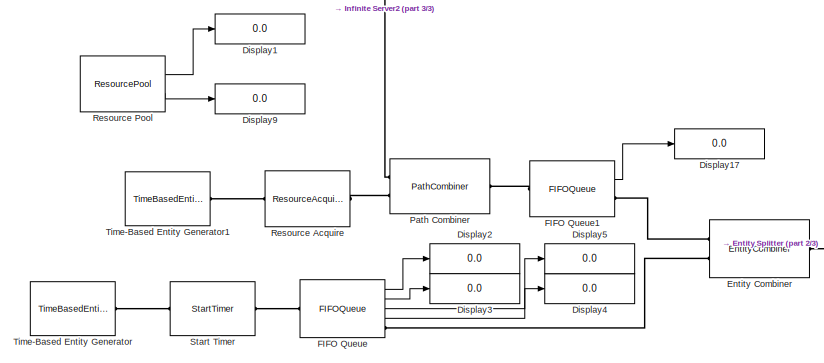
[diagram: root canvas - part 1/3, middle left region]
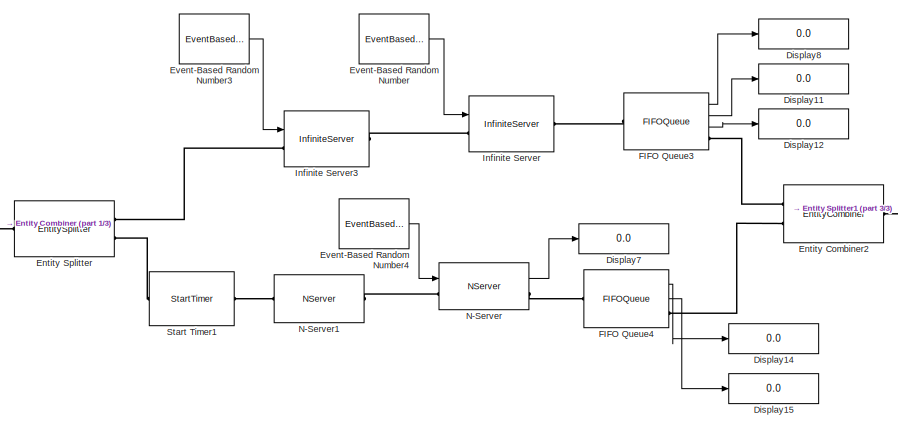
[diagram: root canvas - part 2/3, center side, full height]
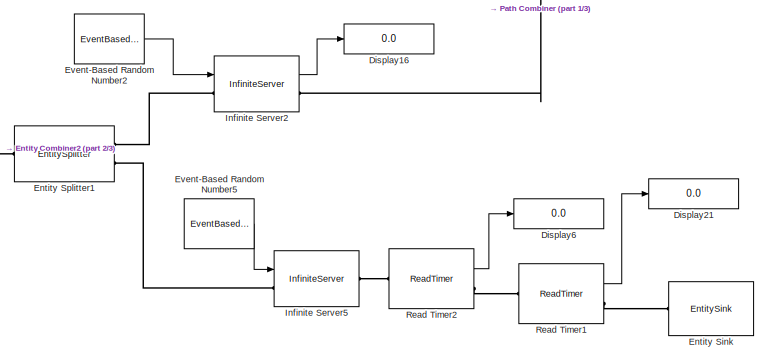
[diagram: root canvas - part 3/3, middle right region]
MODEL slx_b2f74bf23abc
KIND model
CONFIG AbsTol = auto
CONFIG EnableMultiTasking = off
CONFIG FixedStep = auto
CONFIG MaxStep = auto
CONFIG MinStep = auto
CONFIG RelTol = 1e-3
CONFIG SampleTimeConstraint = Unconstrained
CONFIG Solver = VariableStepAuto
CONFIG SolverName = VariableStepAuto
CONFIG StartTime = 0.0
CONFIG StopTime = 720000
BLOCK [Display] Display1
  Decimation = 1
  Ports = [1]
BLOCK [Display] Display11
  Decimation = 1
  Ports = [1]
BLOCK [Display] Display12
  Decimation = 1
  Ports = [1]
BLOCK [Display] Display14
  Decimation = 1
  Ports = [1]
BLOCK [Display] Display15
  Decimation = 1
  Ports = [1]
BLOCK [Display] Display16
  Decimation = 1
  Ports = [1]
BLOCK [Display] Display17
  Decimation = 1
  Ports = [1]
BLOCK [Display] Display2
  Decimation = 1
  Ports = [1]
BLOCK [Display] Display21
  Decimation = 1
  Format = long
  Ports = [1]
BLOCK [Display] Display3
  Decimation = 1
  Ports = [1]
BLOCK [Display] Display4
  Decimation = 1
  Ports = [1]
BLOCK [Display] Display5
  Decimation = 1
  Ports = [1]
BLOCK [Display] Display6
  Decimation = 1
  Ports = [1]
BLOCK [Display] Display7
  Decimation = 1
  Ports = [1]
BLOCK [Display] Display8
  Decimation = 1
  Ports = [1]
BLOCK [Display] Display9
  Decimation = 1
  Ports = [1]
BLOCK [EntityCombiner] Entity Combiner
  NumberInputPorts = 2
  Ports = [0, 0, 0, 0, 0, 2, 1]
BLOCK [EntityCombiner] Entity Combiner2
  NumberInputPorts = 2
  Ports = [0, 0, 0, 0, 0, 2, 1]
BLOCK [EntitySink] Entity Sink
  Ports = [0, 0, 0, 0, 0, 1]
BLOCK [EntitySplitter] Entity Splitter
  NumberOutputPorts = 2
  Ports = [0, 0, 0, 0, 0, 1, 2]
BLOCK [EntitySplitter] Entity Splitter1
  NumberOutputPorts = 2
  Ports = [0, 0, 0, 0, 0, 1, 2]
BLOCK [EventBasedRandomNumber] Event-Based Random Number
  OutputPortMap = o0
  Ports = [0, 1]
  Seed = 34425
  meanExp = 387
  meanNorm = 315
  stdNorm = 5
BLOCK [EventBasedRandomNumber] Event-Based Random Number2
  OutputPortMap = o0
  Ports = [0, 1]
  Seed = 58140
  meanExp = 10
BLOCK [EventBasedRandomNumber] Event-Based Random Number3
  OutputPortMap = o0
  Ports = [0, 1]
  Seed = 11223
  meanExp = 10
  meanNorm = 12
  stdNorm = 3
BLOCK [EventBasedRandomNumber] Event-Based Random Number4
  OutputPortMap = o0
  Ports = [0, 1]
  Seed = 343
  meanExp = 986
  meanNorm = 7
  stdNorm = 38
BLOCK [EventBasedRandomNumber] Event-Based Random Number5
  OutputPortMap = o0
  Ports = [0, 1]
  Seed = 61357
  meanExp = 10
BLOCK [FIFOQueue] FIFO Queue
  Capacity = 10000
  OutputPortMap = o0,o1,o2,o3
  Ports = [0, 4, 0, 0, 0, 1, 1]
  StatAverageQueueLength = on
  StatAverageWait = on
  StatNumberDeparted = on
  StatNumberInBlock = on
BLOCK [FIFOQueue] FIFO Queue1
  OutputPortMap = o3
  Ports = [0, 1, 0, 0, 0, 1, 1]
  StatAverageQueueLength = on
BLOCK [FIFOQueue] FIFO Queue3
  OutputPortMap = o0,o2,o3
  Ports = [0, 3, 0, 0, 0, 1, 1]
  StatAverageQueueLength = on
  StatAverageWait = on
  StatNumberDeparted = on
BLOCK [FIFOQueue] FIFO Queue4
  Capacity = 1
  OutputPortMap = o2,o3
  Ports = [0, 2, 0, 0, 0, 1, 1]
  StatAverageQueueLength = on
  StatAverageWait = on
BLOCK [InfiniteServer] Infinite Server
  InputPortMap = u0
  Ports = [1, 0, 0, 0, 0, 1, 1]
  ServiceTimeFrom = Signal port t
BLOCK [InfiniteServer] Infinite Server2
  InputPortMap = u0
  OutputPortMap = o0
  Ports = [1, 1, 0, 0, 0, 1, 1]
  ServiceTimeFrom = Signal port t
  StatNumberDeparted = on
BLOCK [InfiniteServer] Infinite Server3
  InputPortMap = u0
  Ports = [1, 0, 0, 0, 0, 1, 1]
  ServiceTimeFrom = Signal port t
BLOCK [InfiniteServer] Infinite Server5
  InputPortMap = u0
  Ports = [1, 0, 0, 0, 0, 1, 1]
  ServiceTimeFrom = Signal port t
BLOCK [NServer] N-Server
  InputPortMap = u0
  NumberOfServers = 48
  OutputPortMap = o5
  Ports = [1, 1, 0, 0, 0, 1, 1]
  ServiceTimeFrom = Signal port t
  StatUtilization = on
BLOCK [NServer] N-Server1
  NumberOfServers = 20
  Ports = [0, 0, 0, 0, 0, 1, 1]
  ServiceTime = 0
BLOCK [PathCombiner] Path Combiner
  NumberInputPorts = 2
  Ports = [0, 0, 0, 0, 0, 2, 1]
BLOCK [ReadTimer] Read Timer1
  OutputPortMap = o3
  Ports = [0, 1, 0, 0, 0, 1, 1]
  StatAverageTimeElapsed = on
  TimerTag = T2
BLOCK [ReadTimer] Read Timer2
  OutputPortMap = o3
  Ports = [0, 1, 0, 0, 0, 1, 1]
  StatAverageTimeElapsed = on
BLOCK [ResourceAcquire] Resource Acquire
  Capacity = 100
  EvaluatedResourceAmount = { 1}
  Ports = [0, 0, 0, 0, 0, 1, 1]
  ResourceName = robot
BLOCK [ResourcePool] Resource Pool
  OutputPortMap = o0,o1
  Ports = [0, 2]
  ResourceAmount = 48
  ResourceName = robot
  StatAmountInUse = on
  StatUtilization = on
BLOCK [StartTimer] Start Timer
  Ports = [0, 0, 0, 0, 0, 1, 1]
  TimerStartedOption = Continue
  TimerTag = T2
BLOCK [StartTimer] Start Timer1
  Ports = [0, 0, 0, 0, 0, 1, 1]
  TimerStartedOption = Continue
BLOCK [TimeBasedEntityGenerator] Time-Based Entity Generator
  Distribution = Exponential
  InitialSeed = 40859
  Mean = 3600/60
  Ports = [0, 0, 0, 0, 0, 0, 1]
BLOCK [TimeBasedEntityGenerator] Time-Based Entity Generator1
  Mean = 3600/20
  Period = 0.00000001
  Ports = [0, 0, 0, 0, 0, 0, 1]
LINE Event-Based Random Number2:1 -> Infinite Server2:1
LINE Event-Based Random Number3:1 -> Infinite Server3:1
LINE Event-Based Random Number4:1 -> N-Server:1
LINE Event-Based Random Number5:1 -> Infinite Server5:1
LINE Event-Based Random Number:1 -> Infinite Server:1
LINE FIFO Queue1:1 -> Display17:1
LINE FIFO Queue3:1 -> Display8:1
LINE FIFO Queue3:2 -> Display11:1
LINE FIFO Queue3:3 -> Display12:1
LINE FIFO Queue4:1 -> Display14:1
LINE FIFO Queue4:2 -> Display15:1
LINE FIFO Queue:1 -> Display2:1
LINE FIFO Queue:2 -> Display3:1
LINE FIFO Queue:3 -> Display5:1
LINE FIFO Queue:4 -> Display4:1
LINE Infinite Server2:1 -> Display16:1
LINE N-Server:1 -> Display7:1
LINE Read Timer1:1 -> Display21:1
LINE Read Timer2:1 -> Display6:1
LINE Resource Pool:1 -> Display1:1
LINE Resource Pool:2 -> Display9:1
PLINE Entity Combiner2:LConn1 -- FIFO Queue3:RConn1
PLINE Entity Combiner2:LConn2 -- FIFO Queue4:RConn1
PLINE Entity Combiner2:RConn1 -- Entity Splitter1:LConn1
PLINE Entity Combiner:LConn1 -- FIFO Queue1:RConn1
PLINE Entity Combiner:LConn2 -- FIFO Queue:RConn1
PLINE Entity Combiner:RConn1 -- Entity Splitter:LConn1
PLINE Entity Sink:LConn1 -- Read Timer1:RConn1
PLINE Entity Splitter1:RConn1 -- Infinite Server2:LConn1
PLINE Entity Splitter1:RConn2 -- Infinite Server5:LConn1
PLINE Entity Splitter:RConn1 -- Infinite Server3:LConn1
PLINE Entity Splitter:RConn2 -- Start Timer1:LConn1
PLINE FIFO Queue1:LConn1 -- Path Combiner:RConn1
PLINE FIFO Queue3:LConn1 -- Infinite Server:RConn1
PLINE FIFO Queue4:LConn1 -- N-Server:RConn1
PLINE FIFO Queue:LConn1 -- Start Timer:RConn1
PLINE Infinite Server2:RConn1 -- Path Combiner:LConn1
PLINE Infinite Server3:RConn1 -- Infinite Server:LConn1
PLINE Infinite Server5:RConn1 -- Read Timer2:LConn1
PLINE N-Server1:LConn1 -- Start Timer1:RConn1
PLINE N-Server1:RConn1 -- N-Server:LConn1
PLINE Path Combiner:LConn2 -- Resource Acquire:RConn1
PLINE Read Timer1:LConn1 -- Read Timer2:RConn1
PLINE Resource Acquire:LConn1 -- Time-Based Entity Generator1:RConn1
PLINE Start Timer:LConn1 -- Time-Based Entity Generator:RConn1
